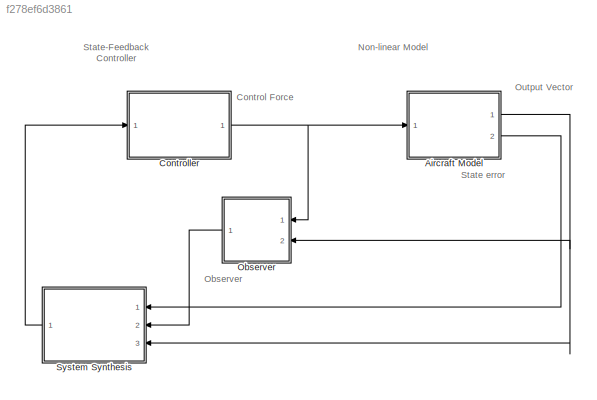
MODEL slx_f278ef6d3861
KIND model
CONFIG AbsTol = auto
CONFIG EnableMultiTasking = off
CONFIG FixedStep = auto
CONFIG MaxStep = auto
CONFIG MinStep = auto
CONFIG RelTol = 1e-3
CONFIG SampleTimeConstraint = Unconstrained
CONFIG Solver = ode4
CONFIG SolverName = ode4
CONFIG StartTime = 0.0
CONFIG StopTime = 10.0
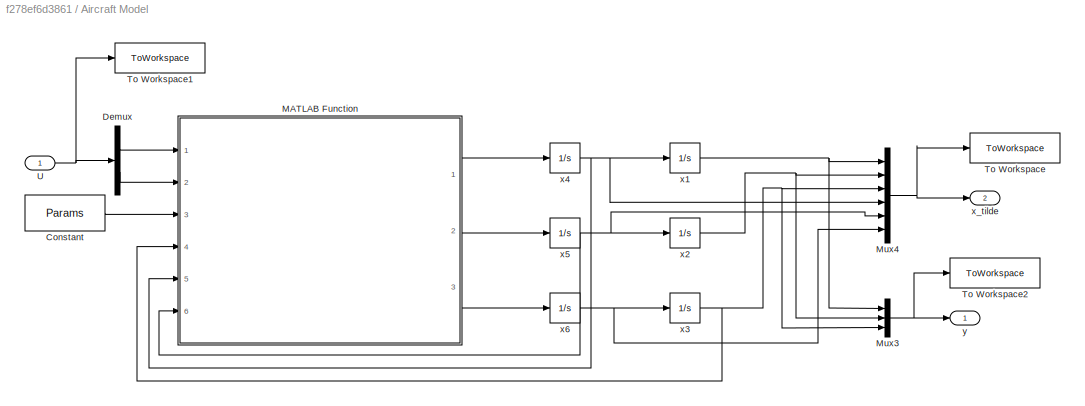
BLOCK [SubSystem] Aircraft Model 
  Ports = [1, 2]
  RequestExecContextInheritance = off
BLOCK [Constant] Aircraft Model /Constant
  Value = Params
BLOCK [Demux] Aircraft Model /Demux
  Outputs = 2
  Ports = [1, 2]
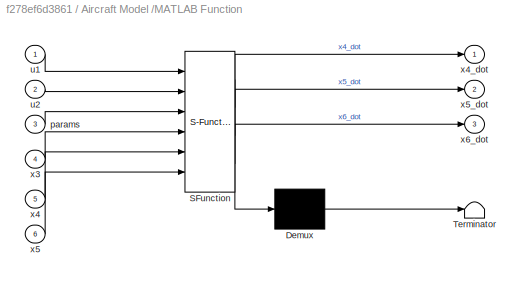
BLOCK [SubSystem] Aircraft Model /MATLAB Function
  ErrorFcn = Stateflow.Translate.translate
  PermitHierarchicalResolution = ExplicitOnly
  Ports = [6, 3]
  RequestExecContextInheritance = off
  SFBlockType = MATLAB Function
  TreatAsAtomicUnit = on
BLOCK [Demux] Aircraft Model /MATLAB Function/ Demux 
  Outputs = 1
  Ports = [1, 1]
BLOCK [S-Function] Aircraft Model /MATLAB Function/ SFunction 
  EnableBusSupport = on
  FunctionName = sf_sfun
  PortCounts = [6 4]
  Ports = [6, 4]
  SFcnIsStateOwnerBlock = off
  SFunctionDeploymentMode = off
  Tag = Stateflow S-Function 2
BLOCK [Terminator] Aircraft Model /MATLAB Function/ Terminator 
BLOCK [Inport] Aircraft Model /MATLAB Function/params
  Port = 3
BLOCK [Inport] Aircraft Model /MATLAB Function/u1
BLOCK [Inport] Aircraft Model /MATLAB Function/u2
  Port = 2
BLOCK [Inport] Aircraft Model /MATLAB Function/x3
  Port = 4
BLOCK [Inport] Aircraft Model /MATLAB Function/x4
  Port = 5
BLOCK [Outport] Aircraft Model /MATLAB Function/x4_dot
BLOCK [Inport] Aircraft Model /MATLAB Function/x5
  Port = 6
BLOCK [Outport] Aircraft Model /MATLAB Function/x5_dot
  Port = 2
BLOCK [Outport] Aircraft Model /MATLAB Function/x6_dot
  Port = 3
BLOCK [Mux] Aircraft Model /Mux3
  DisplayOption = bar
  Inputs = 3
  Ports = [3, 1]
BLOCK [Mux] Aircraft Model /Mux4
  DisplayOption = bar
  Inputs = 6
  Ports = [6, 1]
BLOCK [ToWorkspace] Aircraft Model /To Workspace
  FixptAsFi = on
  MaxDataPoints = inf
  Ports = [1]
  SampleTime = -1
  VariableName = x
BLOCK [ToWorkspace] Aircraft Model /To Workspace1
  FixptAsFi = on
  MaxDataPoints = inf
  Ports = [1]
  SampleTime = -1
  VariableName = F
BLOCK [ToWorkspace] Aircraft Model /To Workspace2
  FixptAsFi = on
  MaxDataPoints = inf
  Ports = [1]
  SampleTime = -1
  VariableName = y
BLOCK [Inport] Aircraft Model /U
BLOCK [Integrator] Aircraft Model /x1
  InitialCondition = x_inital(1)
  Ports = [1, 1]
BLOCK [Integrator] Aircraft Model /x2
  InitialCondition = x_inital(2)
  Ports = [1, 1]
BLOCK [Integrator] Aircraft Model /x3
  InitialCondition = x_inital(3)
  Ports = [1, 1]
BLOCK [Integrator] Aircraft Model /x4
  InitialCondition = x_inital(4)
  Ports = [1, 1]
BLOCK [Integrator] Aircraft Model /x5
  InitialCondition = x_inital(5)
  Ports = [1, 1]
BLOCK [Integrator] Aircraft Model /x6
  InitialCondition = x_inital(6)
  Ports = [1, 1]
BLOCK [Outport] Aircraft Model /x_tilde
  Port = 2
BLOCK [Outport] Aircraft Model /y
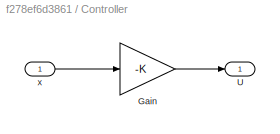
BLOCK [SubSystem] Controller
  Ports = [1, 1]
  RequestExecContextInheritance = off
BLOCK [Gain] Controller/Gain
  Gain = -K
  Multiplication = Matrix(K*u)
BLOCK [Outport] Controller/U
BLOCK [Inport] Controller/x
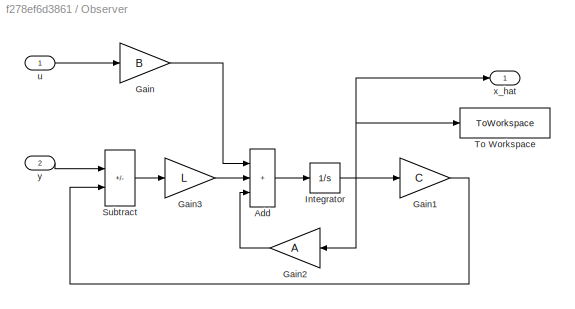
BLOCK [SubSystem] Observer
  Ports = [2, 1]
  RequestExecContextInheritance = off
BLOCK [Sum] Observer/Add
  IconShape = rectangular
  Inputs = 3
  Ports = [3, 1]
BLOCK [Gain] Observer/Gain
  Gain = B
  Multiplication = Matrix(K*u)
BLOCK [Gain] Observer/Gain1
  Gain = C
  Multiplication = Matrix(K*u)
BLOCK [Gain] Observer/Gain2
  Gain = A
  Multiplication = Matrix(K*u)
  NameLocation = top
BLOCK [Gain] Observer/Gain3
  Gain = L
  Multiplication = Matrix(K*u)
BLOCK [Integrator] Observer/Integrator
  Ports = [1, 1]
BLOCK [Sum] Observer/Subtract
  IconShape = rectangular
  Inputs = +-
  Ports = [2, 1]
BLOCK [ToWorkspace] Observer/To Workspace
  FixptAsFi = on
  MaxDataPoints = inf
  Ports = [1]
  SampleTime = -1
  VariableName = x_hat
BLOCK [Inport] Observer/u
BLOCK [Outport] Observer/x_hat
BLOCK [Inport] Observer/y
  Port = 2
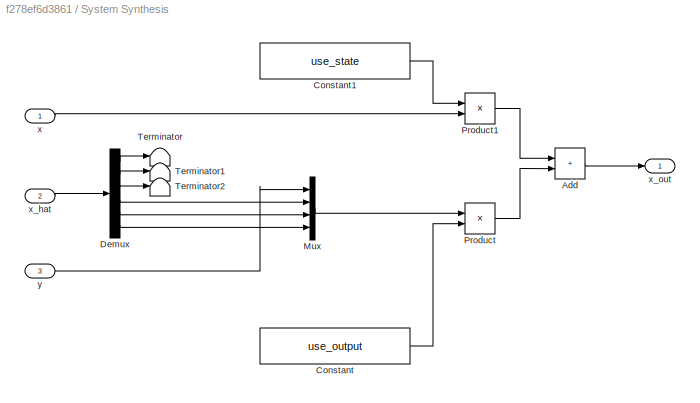
BLOCK [SubSystem] System Synthesis
  Ports = [3, 1]
  RequestExecContextInheritance = off
BLOCK [Sum] System Synthesis/Add
  IconShape = rectangular
  Ports = [2, 1]
BLOCK [Constant] System Synthesis/Constant
  Value = use_output
BLOCK [Constant] System Synthesis/Constant1
  Value = use_state
BLOCK [Demux] System Synthesis/Demux
  Outputs = 6
  Ports = [1, 6]
BLOCK [Mux] System Synthesis/Mux
  DisplayOption = bar
  Ports = [4, 1]
BLOCK [Product] System Synthesis/Product
  Ports = [2, 1]
BLOCK [Product] System Synthesis/Product1
  Ports = [2, 1]
BLOCK [Terminator] System Synthesis/Terminator
BLOCK [Terminator] System Synthesis/Terminator1
BLOCK [Terminator] System Synthesis/Terminator2
BLOCK [Inport] System Synthesis/x
BLOCK [Inport] System Synthesis/x_hat
  Port = 2
BLOCK [Outport] System Synthesis/x_out
BLOCK [Inport] System Synthesis/y
  Port = 3
ANNOTATION (root): Non-linear Model
ANNOTATION (root): State-Feedback Controller
ANNOTATION (root): Observer
ANNOTATION (root): Output Vector
ANNOTATION (root): State error
ANNOTATION (root): Control Force
LINE Aircraft Model /Constant:1 -> Aircraft Model /MATLAB Function:3
LINE Aircraft Model /Demux:1 -> Aircraft Model /MATLAB Function:1
LINE Aircraft Model /Demux:2 -> Aircraft Model /MATLAB Function:2
LINE Aircraft Model /MATLAB Function:1 -> Aircraft Model /x4:1
LINE Aircraft Model /MATLAB Function:2 -> Aircraft Model /x5:1
LINE Aircraft Model /MATLAB Function:3 -> Aircraft Model /x6:1
NET Aircraft Model /Mux3:1 -> Aircraft Model /To Workspace2:1, Aircraft Model /y:1
NET Aircraft Model /Mux4:1 -> Aircraft Model /To Workspace:1, Aircraft Model /x_tilde:1
NET Aircraft Model /U:1 -> Aircraft Model /Demux:1, Aircraft Model /To Workspace1:1
NET Aircraft Model /x1:1 -> Aircraft Model /Mux3:1, Aircraft Model /Mux4:1
NET Aircraft Model /x2:1 -> Aircraft Model /Mux3:2, Aircraft Model /Mux4:2
NET Aircraft Model /x3:1 -> Aircraft Model /MATLAB Function:4, Aircraft Model /Mux3:3, Aircraft Model /Mux4:3
NET Aircraft Model /x4:1 -> Aircraft Model /MATLAB Function:5, Aircraft Model /Mux4:4, Aircraft Model /x1:1
NET Aircraft Model /x5:1 -> Aircraft Model /MATLAB Function:6, Aircraft Model /Mux4:5, Aircraft Model /x2:1
NET Aircraft Model /x6:1 -> Aircraft Model /Mux4:6, Aircraft Model /x3:1
NET Aircraft Model :1 -> Observer:2, System Synthesis:3
LINE Aircraft Model :2 -> System Synthesis:1
LINE Controller/Gain:1 -> Controller/U:1
LINE Controller/x:1 -> Controller/Gain:1
NET Controller:1 -> Aircraft Model :1, Observer:1
LINE Observer/Add:1 -> Observer/Integrator:1
LINE Observer/Gain1:1 -> Observer/Subtract:2
LINE Observer/Gain2:1 -> Observer/Add:3
LINE Observer/Gain3:1 -> Observer/Add:2
LINE Observer/Gain:1 -> Observer/Add:1
NET Observer/Integrator:1 -> Observer/Gain1:1, Observer/Gain2:1, Observer/To Workspace:1, Observer/x_hat:1
LINE Observer/Subtract:1 -> Observer/Gain3:1
LINE Observer/u:1 -> Observer/Gain:1
LINE Observer/y:1 -> Observer/Subtract:1
LINE Observer:1 -> System Synthesis:2
LINE System Synthesis/Add:1 -> System Synthesis/x_out:1
LINE System Synthesis/Constant1:1 -> System Synthesis/Product1:1
LINE System Synthesis/Constant:1 -> System Synthesis/Product:2
LINE System Synthesis/Demux:1 -> System Synthesis/Terminator:1
LINE System Synthesis/Demux:2 -> System Synthesis/Terminator1:1
LINE System Synthesis/Demux:3 -> System Synthesis/Terminator2:1
LINE System Synthesis/Demux:4 -> System Synthesis/Mux:2
LINE System Synthesis/Demux:5 -> System Synthesis/Mux:3
LINE System Synthesis/Demux:6 -> System Synthesis/Mux:4
LINE System Synthesis/Mux:1 -> System Synthesis/Product:1
LINE System Synthesis/Product1:1 -> System Synthesis/Add:1
LINE System Synthesis/Product:1 -> System Synthesis/Add:2
LINE System Synthesis/x:1 -> System Synthesis/Product1:2
LINE System Synthesis/x_hat:1 -> System Synthesis/Demux:1
LINE System Synthesis/y:1 -> System Synthesis/Mux:1
LINE System Synthesis:1 -> Controller:1
note: NET lines group one-source signal fan-out (src -> all destinations, sorted); 1:1 wires keep LINE
CHART Aircraft Model
/MATLAB Function states=1 transitions=1
  STATE_LABEL 'eML_blk_kernel()'
  STATE_LABEL 'SCRIPT:\nfunction [x4_dot, x5_dot, x6_dot] = NonLinearEquations(u1, u2, params, x3, x4, x5)\n\ng = params(1);\nc = params(2);\nm = params(3);\nj = params(4);\nr = params(5);\n\nx4_dot = ((-m*g*sin(x3))-(c*x4)+(u1*cos(x3))-(u2*sin(x3)))/m;\nx5_dot = (((m*g)*((cos(x3)-1))) - (c*x5) + (u1*sin(x3))+(u2*cos(x3)))/m; \nx6_dot = (r*u1)/j;\n\n'
CHART  states=0 transitions=0
